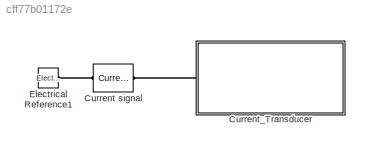
MODEL slx_cff77b01172e
KIND model
CONFIG AbsTol = auto
CONFIG EnableMultiTasking = off
CONFIG FixedStep = auto
CONFIG MaxStep = auto
CONFIG MinStep = auto
CONFIG RelTol = 1e-3
CONFIG SampleTimeConstraint = Unconstrained
CONFIG SolverName = VariableStepAuto
CONFIG StartTime = 0.0
CONFIG StopTime = 1/60*2
BLOCK [Reference] Current signal  REF=ee_lib/Sources/Current Source
  Ports = [0, 0, 0, 0, 0, 1, 1]
  SourceBlock = ee_lib/Sources/Current Source
  SourceProductBaseCode = PS
  SourceType = Current Source
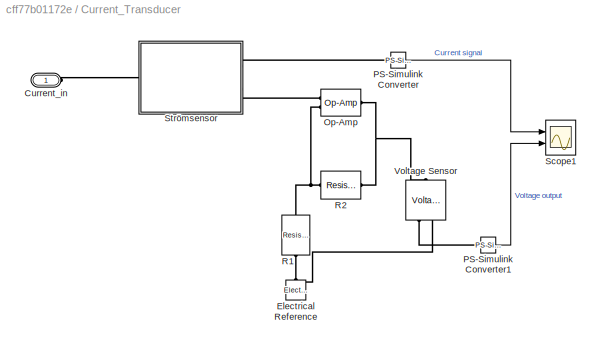
BLOCK [SubSystem] Current_Transducer
  Ports = [0, 0, 0, 0, 0, 1]
  RequestExecContextInheritance = off
BLOCK [PMIOPort] Current_Transducer/Current_in
  Side = Left
BLOCK [Reference] Current_Transducer/Electrical Reference  REF=fl_lib/Electrical/Electrical Elements/Electrical Reference
  NameLocation = right
  Ports = [0, 0, 0, 0, 0, 1]
  SourceBlock = fl_lib/Electrical/Electrical Elements/Electrical Reference
  SourceProductBaseCode = SS
  SourceType = Electrical Reference
BLOCK [Reference] Current_Transducer/Op-Amp  REF=fl_lib/Electrical/Electrical Elements/Op-Amp
  Ports = [0, 0, 0, 0, 0, 2, 1]
  SourceBlock = fl_lib/Electrical/Electrical Elements/Op-Amp
  SourceProductBaseCode = SS
  SourceType = Op-Amp
BLOCK [Reference] Current_Transducer/PS-Simulink Converter  REF=nesl_utility/PS-Simulink
Converter
  Ports = [0, 1, 0, 0, 0, 1]
  SourceBlock = nesl_utility/PS-Simulink\nConverter
  SourceProductBaseCode = SS
  SourceType = PS-Simulink\nConverter
BLOCK [Reference] Current_Transducer/PS-Simulink Converter1  REF=nesl_utility/PS-Simulink
Converter
  Ports = [0, 1, 0, 0, 0, 1]
  SourceBlock = nesl_utility/PS-Simulink\nConverter
  SourceProductBaseCode = SS
  SourceType = PS-Simulink\nConverter
BLOCK [Reference] Current_Transducer/R1  REF=fl_lib/Electrical/Electrical Elements/Resistor
  NameLocation = left
  Ports = [0, 0, 0, 0, 0, 1, 1]
  SourceBlock = fl_lib/Electrical/Electrical Elements/Resistor
  SourceProductBaseCode = SS
  SourceType = Resistor
BLOCK [Reference] Current_Transducer/R2  REF=fl_lib/Electrical/Electrical Elements/Resistor
  Ports = [0, 0, 0, 0, 0, 1, 1]
  SourceBlock = fl_lib/Electrical/Electrical Elements/Resistor
  SourceProductBaseCode = SS
  SourceType = Resistor
BLOCK [Scope] Current_Transducer/Scope1
  Floating = off
  NumInputPorts = 2
  Ports = [2]
  ScopeSpecificationString = Simulink.scopes.TimeScopeBlockCfg('CurrentConfiguration', extmgr.ConfigurationSet(extmgr.Configuration('Core','General UI',true),extmgr.Configuration('Core','Source UI',true),extmgr.Configuration('Sources','WiredSimulink',true,'DataLoggingVariableName','ScopeData1'),extmgr.Configuration('Visuals','Time Domain',true,'SerializedDisplays',{struct('MinYLimReal','-0.24989','MaxYLimReal','0.24986','YLab...<+2096ch>
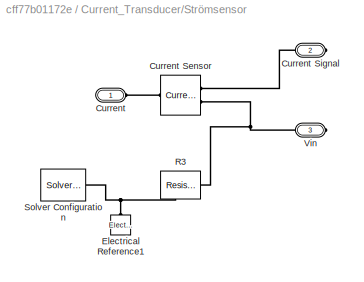
BLOCK [SubSystem] Current_Transducer/Strömsensor
  Ports = [0, 0, 0, 0, 0, 1, 2]
  RequestExecContextInheritance = off
BLOCK [PMIOPort] Current_Transducer/Strömsensor/Current
  Side = Left
BLOCK [Reference] Current_Transducer/Strömsensor/Current Sensor  REF=fl_lib/Electrical/Electrical Sensors/Current Sensor
  Ports = [0, 0, 0, 0, 0, 1, 2]
  SourceBlock = fl_lib/Electrical/Electrical Sensors/Current Sensor
  SourceProductBaseCode = SS
  SourceType = Current Sensor
BLOCK [PMIOPort] Current_Transducer/Strömsensor/Current Signal
  Port = 2
  Side = Right
BLOCK [Reference] Current_Transducer/Strömsensor/Electrical Reference1  REF=fl_lib/Electrical/Electrical Elements/Electrical Reference
  NameLocation = right
  Ports = [0, 0, 0, 0, 0, 1]
  SourceBlock = fl_lib/Electrical/Electrical Elements/Electrical Reference
  SourceProductBaseCode = SS
  SourceType = Electrical Reference
BLOCK [Reference] Current_Transducer/Strömsensor/R3  REF=fl_lib/Electrical/Electrical Elements/Resistor
  NameLocation = top
  Ports = [0, 0, 0, 0, 0, 1, 1]
  SourceBlock = fl_lib/Electrical/Electrical Elements/Resistor
  SourceProductBaseCode = SS
  SourceType = Resistor
BLOCK [Reference] Current_Transducer/Strömsensor/Solver Configuration  REF=nesl_utility/Solver
Configuration
  Ports = [0, 0, 0, 0, 0, 0, 1]
  SourceBlock = nesl_utility/Solver\nConfiguration
  SourceProductBaseCode = SS
  SourceType = Solver\nConfiguration
BLOCK [PMIOPort] Current_Transducer/Strömsensor/Vin
  Port = 3
  Side = Right
BLOCK [Reference] Current_Transducer/Voltage Sensor  REF=fl_lib/Electrical/Electrical Sensors/Voltage Sensor
  NameLocation = left
  Ports = [0, 0, 0, 0, 0, 1, 2]
  SourceBlock = fl_lib/Electrical/Electrical Sensors/Voltage Sensor
  SourceProductBaseCode = SS
  SourceType = Voltage Sensor
BLOCK [Reference] Electrical Reference1  REF=fl_lib/Electrical/Electrical Elements/Electrical Reference
  Ports = [0, 0, 0, 0, 0, 1]
  SourceBlock = fl_lib/Electrical/Electrical Elements/Electrical Reference
  SourceProductBaseCode = SS
  SourceType = Electrical Reference
LINE Current_Transducer/PS-Simulink Converter1:1 -> Current_Transducer/Scope1:2
LINE Current_Transducer/PS-Simulink Converter:1 -> Current_Transducer/Scope1:1
PLINE Current signal:LConn1 -- Current_Transducer:LConn1
PLINE Current signal:RConn1 -- Electrical Reference1:LConn1
PLINE Current_Transducer/Current_in:RConn1 -- Current_Transducer/Strömsensor:LConn1
PNET net1: Current_Transducer/Electrical Reference:LConn1 -- Current_Transducer/R1:RConn1 -- Current_Transducer/Voltage Sensor:RConn2
PLINE Current_Transducer/Op-Amp:LConn1 -- Current_Transducer/Strömsensor:RConn2
PNET net2: Current_Transducer/Op-Amp:LConn2 -- Current_Transducer/R1:LConn1 -- Current_Transducer/R2:LConn1
PNET net3: Current_Transducer/Op-Amp:RConn1 -- Current_Transducer/R2:RConn1 -- Current_Transducer/Voltage Sensor:LConn1
PLINE Current_Transducer/PS-Simulink Converter1:LConn1 -- Current_Transducer/Voltage Sensor:RConn1
PLINE Current_Transducer/PS-Simulink Converter:LConn1 -- Current_Transducer/Strömsensor:RConn1
PLINE Current_Transducer/Strömsensor/Current Sensor:LConn1 -- Current_Transducer/Strömsensor/Current:RConn1
PLINE Current_Transducer/Strömsensor/Current Sensor:RConn1 -- Current_Transducer/Strömsensor/Current Signal:RConn1
PNET net4: Current_Transducer/Strömsensor/Current Sensor:RConn2 -- Current_Transducer/Strömsensor/R3:LConn1 -- Current_Transducer/Strömsensor/Vin:RConn1
PNET net5: Current_Transducer/Strömsensor/Electrical Reference1:LConn1 -- Current_Transducer/Strömsensor/R3:RConn1 -- Current_Transducer/Strömsensor/Solver Configuration:RConn1
note: PNET lines group multi-terminal physical nets as a canonical sorted terminal list (undirected conserving connections); 2-terminal nets keep the pairwise PLINE form
